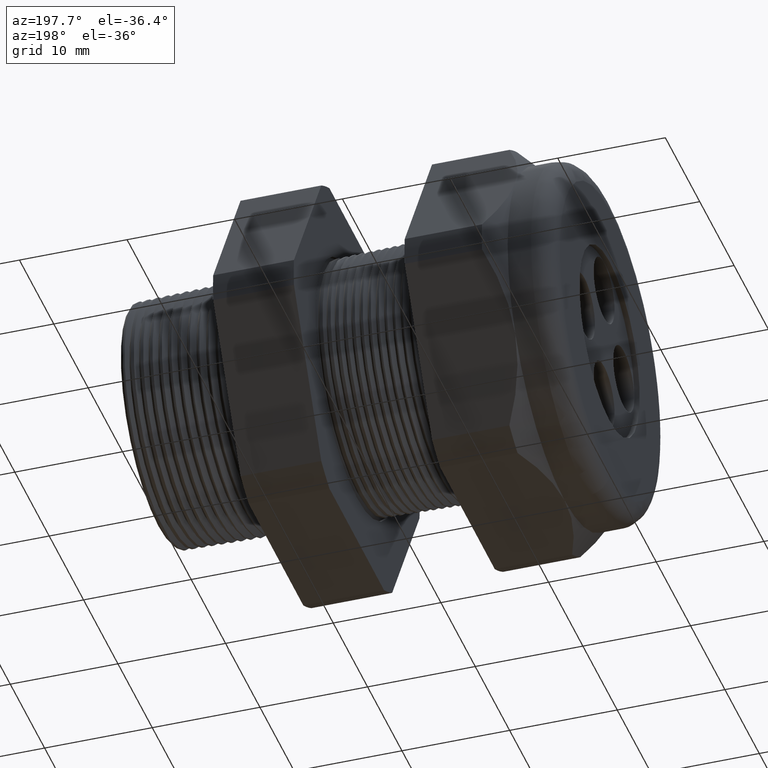
[diagram: clean part render]
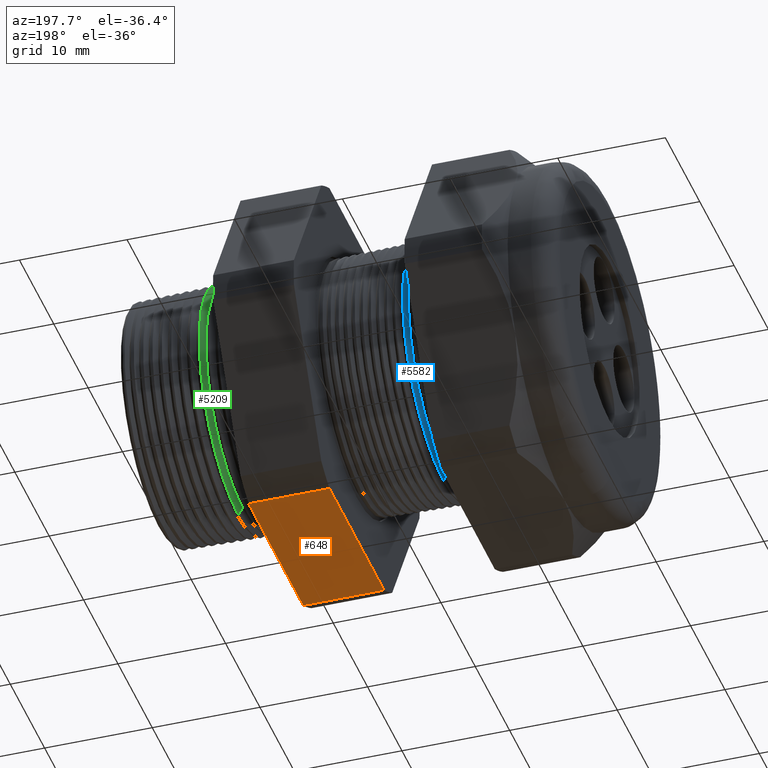
[diagram: same view with three faces highlighted in distinct colors, each labeled with its STEP entity id]
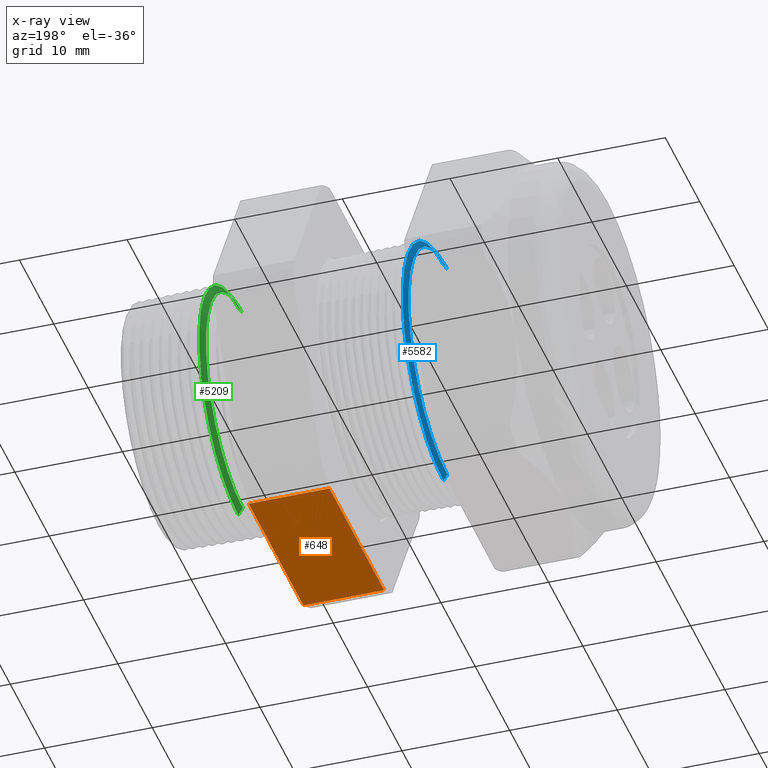
[diagram: x-ray of the same camera — body ghosted, the three highlighted faces saturated]
A machine part, auxiliary view with three faces highlighted in distinct colors.
The next image is the same camera in x-ray (body ghosted, the three faces saturated) — at least one of them is partly hidden behind the body in this view.
Their STEP definitions:

[orange] entity #648 — the highlighted planar face has unit normal (0, 0, -1).
#439 = VERTEX_POINT ( 'NONE', #2037 ) ;
#441 = EDGE_CURVE ( 'NONE', #439, #442, #2036, .T. ) ;
#442 = VERTEX_POINT ( 'NONE', #2032 ) ;
#518 = EDGE_CURVE ( 'NONE', #546, #519, #2199, .T. ) ;
#519 = VERTEX_POINT ( 'NONE', #2195 ) ;
#546 = VERTEX_POINT ( 'NONE', #2216 ) ;
#595 = EDGE_LOOP ( 'NONE', ( #649, #650, #651, #653 ) ) ;
#648 = ADVANCED_FACE ( 'NONE', ( #2346 ), #2345, .T. ) ;
#649 = ORIENTED_EDGE ( 'NONE', *, *, #668, .T. ) ;
#650 = ORIENTED_EDGE ( 'NONE', *, *, #518, .F. ) ;
#651 = ORIENTED_EDGE ( 'NONE', *, *, #652, .F. ) ;
#652 = EDGE_CURVE ( 'NONE', #442, #546, #2340, .T. ) ;
#653 = ORIENTED_EDGE ( 'NONE', *, *, #441, .F. ) ;
#668 = EDGE_CURVE ( 'NONE', #439, #519, #2392, .T. ) ;
#2032 = CARTESIAN_POINT ( 'NONE',  ( -0.3100000000000000000, 0.3131489262315934100, -0.6500000000000001300 ) ) ;
#2033 = DIRECTION ( 'NONE',  ( 0.0000000000000000000, 1.000000000000000000, 0.0000000000000000000 ) ) ;
#2034 = VECTOR ( 'NONE', #2033, 39.37007874015748100 ) ;
#2035 = CARTESIAN_POINT ( 'NONE',  ( -0.3100000000000000000, 1.300000000000000000, -0.6500000000000001300 ) ) ;
#2036 = LINE ( 'NONE', #2035, #2034 ) ;
#2037 = CARTESIAN_POINT ( 'NONE',  ( -0.3100000000000000000, -0.3131489262315934100, -0.6500000000000001300 ) ) ;
#2195 = CARTESIAN_POINT ( 'NONE',  ( -0.6052755905511810800, -0.3131489262315934100, -0.6500000000000001300 ) ) ;
#2196 = DIRECTION ( 'NONE',  ( 0.0000000000000000000, -1.000000000000000000, 0.0000000000000000000 ) ) ;
#2197 = VECTOR ( 'NONE', #2196, 39.37007874015748100 ) ;
#2198 = CARTESIAN_POINT ( 'NONE',  ( -0.6052755905511809600, 1.300000000000000000, -0.6500000000000001300 ) ) ;
#2199 = LINE ( 'NONE', #2198, #2197 ) ;
#2216 = CARTESIAN_POINT ( 'NONE',  ( -0.6052755905511810800, 0.3131489262315934100, -0.6500000000000001300 ) ) ;
#2337 = DIRECTION ( 'NONE',  ( -1.000000000000000000, 0.0000000000000000000, 0.0000000000000000000 ) ) ;
#2338 = VECTOR ( 'NONE', #2337, 39.37007874015748100 ) ;
#2339 = CARTESIAN_POINT ( 'NONE',  ( 0.1200000000000000900, 0.3131489262315934100, -0.6500000000000001300 ) ) ;
#2340 = LINE ( 'NONE', #2339, #2338 ) ;
#2341 = DIRECTION ( 'NONE',  ( -1.000000000000000000, 0.0000000000000000000, 0.0000000000000000000 ) ) ;
#2342 = DIRECTION ( 'NONE',  ( 0.0000000000000000000, 0.0000000000000000000, -1.000000000000000000 ) ) ;
#2343 = CARTESIAN_POINT ( 'NONE',  ( 0.1200000000000000900, 0.3131489262315934100, -0.6500000000000001300 ) ) ;
#2344 = AXIS2_PLACEMENT_3D ( 'NONE', #2343, #2342, #2341 ) ;
#2345 = PLANE ( 'NONE',  #2344 ) ;
#2346 = FACE_OUTER_BOUND ( 'NONE', #595, .T. ) ;
#2384 = DIRECTION ( 'NONE',  ( -1.000000000000000000, 0.0000000000000000000, 0.0000000000000000000 ) ) ;
#2385 = VECTOR ( 'NONE', #2384, 39.37007874015748100 ) ;
#2386 = CARTESIAN_POINT ( 'NONE',  ( 0.1200000000000000900, -0.3131489262315934100, -0.6500000000000001300 ) ) ;
#2392 = LINE ( 'NONE', #2386, #2385 ) ;

[blue] entity #5582 — the highlighted conical surface has half-angle 58.5 deg.
#4337 = DIRECTION ( 'NONE',  ( 0.5224985647159348100, 0.0000000000000000000, -0.8526401643541007300 ) ) ;
#4338 = VECTOR ( 'NONE', #4337, 39.37007874015748900 ) ;
#4339 = CARTESIAN_POINT ( 'NONE',  ( -0.9365405736958171100, 0.0000000000000000000, -0.4446307351718083400 ) ) ;
#4340 = LINE ( 'NONE', #4339, #4338 ) ;
#4341 = CARTESIAN_POINT ( 'NONE',  ( -0.9224049386564370200, 5.727648526171992200E-017, -0.4676979950594573600 ) ) ;
#4342 = DIRECTION ( 'NONE',  ( 0.0000000000000000000, 0.0000000000000000000, -1.000000000000000000 ) ) ;
#4343 = DIRECTION ( 'NONE',  ( -1.000000000000000000, 0.0000000000000000000, 0.0000000000000000000 ) ) ;
#4344 = CARTESIAN_POINT ( 'NONE',  ( -0.9224049386564370200, 0.0000000000000000000, 0.0000000000000000000 ) ) ;
#4345 = AXIS2_PLACEMENT_3D ( 'NONE', #4344, #4343, #4342 ) ;
#4346 = CIRCLE ( 'NONE', #4345, 0.4676979950594573600 ) ;
#4356 = DIRECTION ( 'NONE',  ( 0.5224985647159348100, 1.044183048100722500E-016, 0.8526401643541007300 ) ) ;
#4357 = VECTOR ( 'NONE', #4356, 39.37007874015748900 ) ;
#4358 = CARTESIAN_POINT ( 'NONE',  ( -0.9365405736958171100, 5.445156066306895900E-017, 0.4446307351718083400 ) ) ;
#4359 = LINE ( 'NONE', #4358, #4357 ) ;
#4360 = CARTESIAN_POINT ( 'NONE',  ( -0.9365405736958171100, 0.0000000000000000000, 0.4446307351718083400 ) ) ;
#4361 = CARTESIAN_POINT ( 'NONE',  ( -0.9365405736958171100, 5.590738703805261400E-017, -0.4446307351718083400 ) ) ;
#4362 = DIRECTION ( 'NONE',  ( 0.0000000000000000000, 0.0000000000000000000, -1.000000000000000000 ) ) ;
#4363 = DIRECTION ( 'NONE',  ( 1.000000000000000000, 0.0000000000000000000, 0.0000000000000000000 ) ) ;
#4364 = CARTESIAN_POINT ( 'NONE',  ( -0.9365405736958171100, 0.0000000000000000000, 0.0000000000000000000 ) ) ;
#4365 = AXIS2_PLACEMENT_3D ( 'NONE', #4364, #4363, #4362 ) ;
#4366 = DIRECTION ( 'NONE',  ( 0.0000000000000000000, 0.0000000000000000000, -1.000000000000000000 ) ) ;
#4367 = DIRECTION ( 'NONE',  ( 1.000000000000000000, 0.0000000000000000000, 0.0000000000000000000 ) ) ;
#4368 = CARTESIAN_POINT ( 'NONE',  ( -0.9365405736958171100, 0.0000000000000000000, 0.0000000000000000000 ) ) ;
#4369 = AXIS2_PLACEMENT_3D ( 'NONE', #4368, #4367, #4366 ) ;
#4370 = CIRCLE ( 'NONE', #4365, 0.4446307351718083400 ) ;
#4371 = CONICAL_SURFACE ( 'NONE', #4369, 0.4446307351718083400, 1.021017612416699200 ) ;
#4372 = FACE_OUTER_BOUND ( 'NONE', #5583, .T. ) ;
#4419 = CARTESIAN_POINT ( 'NONE',  ( -0.9224049386564370200, 0.0000000000000000000, 0.4676979950594573600 ) ) ;
#5563 = EDGE_CURVE ( 'NONE', #5590, #5564, #4346, .T. ) ;
#5564 = VERTEX_POINT ( 'NONE', #4341 ) ;
#5565 = ORIENTED_EDGE ( 'NONE', *, *, #5566, .F. ) ;
#5566 = EDGE_CURVE ( 'NONE', #5586, #5564, #4340, .T. ) ;
#5582 = ADVANCED_FACE ( 'NONE', ( #4372 ), #4371, .T. ) ;
#5583 = EDGE_LOOP ( 'NONE', ( #5584, #5588, #5591, #5565 ) ) ;
#5584 = ORIENTED_EDGE ( 'NONE', *, *, #5585, .T. ) ;
#5585 = EDGE_CURVE ( 'NONE', #5586, #5587, #4370, .T. ) ;
#5586 = VERTEX_POINT ( 'NONE', #4361 ) ;
#5587 = VERTEX_POINT ( 'NONE', #4360 ) ;
#5588 = ORIENTED_EDGE ( 'NONE', *, *, #5589, .T. ) ;
#5589 = EDGE_CURVE ( 'NONE', #5587, #5590, #4359, .T. ) ;
#5590 = VERTEX_POINT ( 'NONE', #4419 ) ;
#5591 = ORIENTED_EDGE ( 'NONE', *, *, #5563, .T. ) ;

[green] entity #5209 — the highlighted conical surface has half-angle 58.5 deg.
#3598 = DIRECTION ( 'NONE',  ( 0.5224985647159347000, 1.044183048100722800E-016, 0.8526401643541008400 ) ) ;
#3599 = VECTOR ( 'NONE', #3598, 39.37007874015748100 ) ;
#3600 = CARTESIAN_POINT ( 'NONE',  ( -0.1884707356790752100, 5.158438749977368000E-017, 0.4212184895733915900 ) ) ;
#3601 = LINE ( 'NONE', #3600, #3599 ) ;
#3602 = CARTESIAN_POINT ( 'NONE',  ( -0.1720291532523846000, 5.487014229667634400E-017, -0.4480487135954552300 ) ) ;
#3603 = DIRECTION ( 'NONE',  ( 0.0000000000000000000, 0.0000000000000000000, -1.000000000000000000 ) ) ;
#3604 = DIRECTION ( 'NONE',  ( -1.000000000000000000, 0.0000000000000000000, 0.0000000000000000000 ) ) ;
#3605 = CARTESIAN_POINT ( 'NONE',  ( -0.1720291532523846000, 0.0000000000000000000, 0.0000000000000000000 ) ) ;
#3606 = AXIS2_PLACEMENT_3D ( 'NONE', #3605, #3604, #3603 ) ;
#3607 = CIRCLE ( 'NONE', #3606, 0.4480487135954552300 ) ;
#3629 = AXIS2_PLACEMENT_3D ( 'NONE', #3693, #3692, #3691 ) ;
#3630 = CONICAL_SURFACE ( 'NONE', #3629, 0.4212184895733915900, 1.021017612416699400 ) ;
#3632 = FACE_OUTER_BOUND ( 'NONE', #5210, .T. ) ;
#3642 = CARTESIAN_POINT ( 'NONE',  ( -0.1884707356790752100, 0.0000000000000000000, 0.4212184895733915900 ) ) ;
#3643 = CARTESIAN_POINT ( 'NONE',  ( -0.1884707356790752100, 5.327770295935951800E-017, -0.4212184895733915900 ) ) ;
#3644 = DIRECTION ( 'NONE',  ( 0.0000000000000000000, 0.0000000000000000000, -1.000000000000000000 ) ) ;
#3645 = DIRECTION ( 'NONE',  ( 1.000000000000000000, 0.0000000000000000000, 0.0000000000000000000 ) ) ;
#3646 = CARTESIAN_POINT ( 'NONE',  ( -0.1884707356790752100, 0.0000000000000000000, 0.0000000000000000000 ) ) ;
#3647 = AXIS2_PLACEMENT_3D ( 'NONE', #3646, #3645, #3644 ) ;
#3648 = CIRCLE ( 'NONE', #3647, 0.4212184895733915900 ) ;
#3649 = CARTESIAN_POINT ( 'NONE',  ( -0.1720291532523846000, 0.0000000000000000000, 0.4480487135954552300 ) ) ;
#3656 = DIRECTION ( 'NONE',  ( 0.5224985647159347000, 0.0000000000000000000, -0.8526401643541008400 ) ) ;
#3657 = VECTOR ( 'NONE', #3656, 39.37007874015748100 ) ;
#3658 = CARTESIAN_POINT ( 'NONE',  ( -0.1884707356790752100, 0.0000000000000000000, -0.4212184895733915900 ) ) ;
#3659 = LINE ( 'NONE', #3658, #3657 ) ;
#3691 = DIRECTION ( 'NONE',  ( 0.0000000000000000000, 0.0000000000000000000, -1.000000000000000000 ) ) ;
#3692 = DIRECTION ( 'NONE',  ( 1.000000000000000000, 0.0000000000000000000, 0.0000000000000000000 ) ) ;
#3693 = CARTESIAN_POINT ( 'NONE',  ( -0.1884707356790752100, 0.0000000000000000000, 0.0000000000000000000 ) ) ;
#5191 = ORIENTED_EDGE ( 'NONE', *, *, #5197, .F. ) ;
#5193 = EDGE_CURVE ( 'NONE', #5200, #5194, #3607, .T. ) ;
#5194 = VERTEX_POINT ( 'NONE', #3602 ) ;
#5195 = EDGE_CURVE ( 'NONE', #5204, #5200, #3601, .T. ) ;
#5196 = ORIENTED_EDGE ( 'NONE', *, *, #5193, .T. ) ;
#5197 = EDGE_CURVE ( 'NONE', #5203, #5194, #3659, .T. ) ;
#5200 = VERTEX_POINT ( 'NONE', #3649 ) ;
#5201 = ORIENTED_EDGE ( 'NONE', *, *, #5202, .T. ) ;
#5202 = EDGE_CURVE ( 'NONE', #5203, #5204, #3648, .T. ) ;
#5203 = VERTEX_POINT ( 'NONE', #3643 ) ;
#5204 = VERTEX_POINT ( 'NONE', #3642 ) ;
#5205 = ORIENTED_EDGE ( 'NONE', *, *, #5195, .T. ) ;
#5209 = ADVANCED_FACE ( 'NONE', ( #3632 ), #3630, .T. ) ;
#5210 = EDGE_LOOP ( 'NONE', ( #5201, #5205, #5196, #5191 ) ) ;